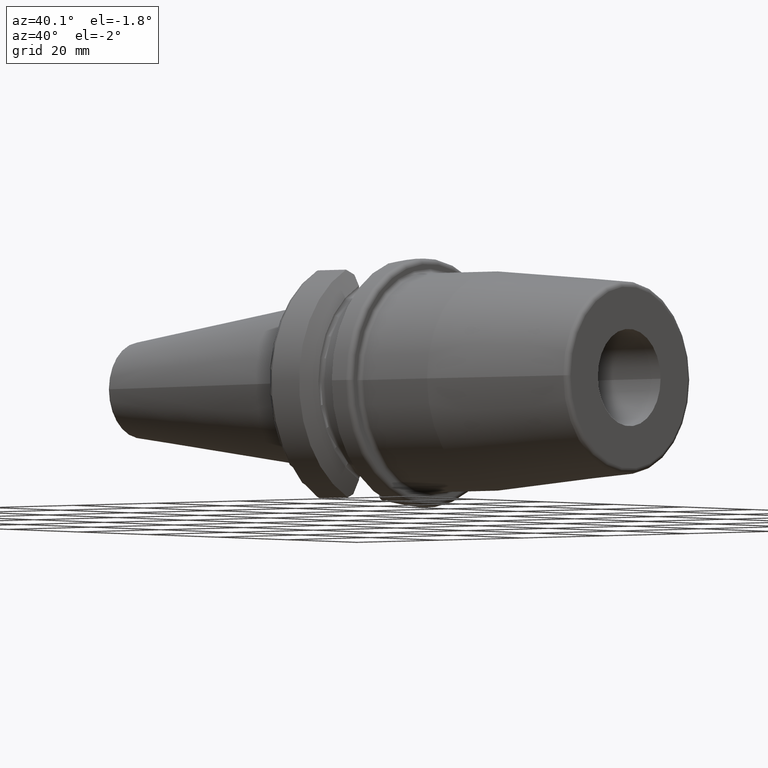
[diagram: clean part render]
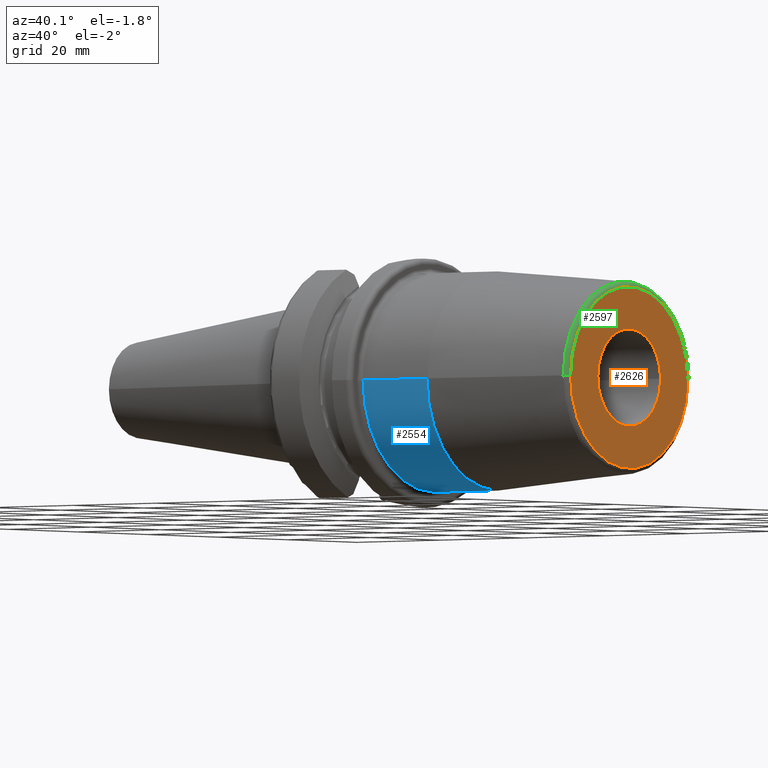
[diagram: same view with three faces highlighted in distinct colors, each labeled with its STEP entity id]
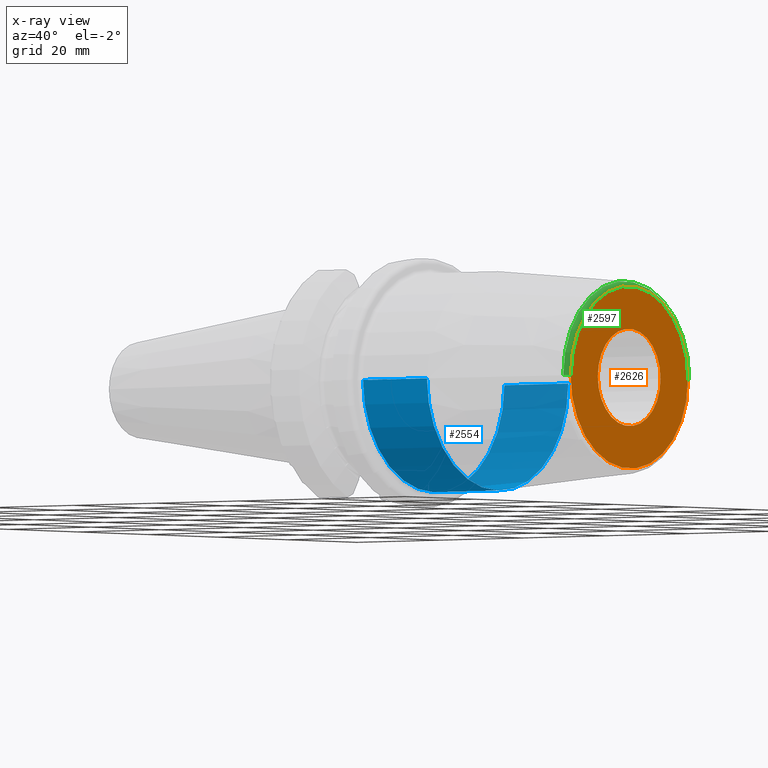
[diagram: x-ray of the same camera — body ghosted, the three highlighted faces saturated]
A machine part, auxiliary view with three faces highlighted in distinct colors.
The next image is the same camera in x-ray (body ghosted, the three faces saturated) — at least one of them is partly hidden behind the body in this view.
Their STEP definitions:

[orange] entity #2626 — the highlighted planar face has unit normal (1, 0, 0).
#898=CARTESIAN_POINT('',(7.E1,0.E0,0.E0));
#899=DIRECTION('',(-1.E0,0.E0,0.E0));
#900=DIRECTION('',(0.E0,-1.E0,0.E0));
#901=AXIS2_PLACEMENT_3D('',#898,#899,#900);
#903=CARTESIAN_POINT('',(7.E1,0.E0,0.E0));
#904=DIRECTION('',(-1.E0,0.E0,0.E0));
#905=DIRECTION('',(0.E0,1.E0,0.E0));
#906=AXIS2_PLACEMENT_3D('',#903,#904,#905);
#908=CARTESIAN_POINT('',(7.E1,0.E0,0.E0));
#909=DIRECTION('',(-1.E0,0.E0,0.E0));
#910=DIRECTION('',(0.E0,1.E0,0.E0));
#911=AXIS2_PLACEMENT_3D('',#908,#909,#910);
#913=CARTESIAN_POINT('',(7.E1,0.E0,0.E0));
#914=DIRECTION('',(-1.E0,0.E0,0.E0));
#915=DIRECTION('',(0.E0,-1.E0,0.E0));
#916=AXIS2_PLACEMENT_3D('',#913,#914,#915);
#1379=CARTESIAN_POINT('',(7.E1,-9.E0,0.E0));
#1380=CARTESIAN_POINT('',(7.E1,9.E0,0.E0));
#1381=VERTEX_POINT('',#1379);
#1382=VERTEX_POINT('',#1380);
#1399=CARTESIAN_POINT('',(7.E1,1.682560950834E1,0.E0));
#1400=CARTESIAN_POINT('',(7.E1,-1.682560950834E1,0.E0));
#1401=VERTEX_POINT('',#1399);
#1402=VERTEX_POINT('',#1400);
#2611=CARTESIAN_POINT('',(7.E1,0.E0,0.E0));
#2612=DIRECTION('',(1.E0,0.E0,0.E0));
#2613=DIRECTION('',(0.E0,-1.E0,0.E0));
#2614=AXIS2_PLACEMENT_3D('',#2611,#2612,#2613);
#2615=PLANE('',#2614);
#2616=ORIENTED_EDGE('',*,*,#2605,.T.);
#2617=ORIENTED_EDGE('',*,*,#2591,.T.);
#2618=EDGE_LOOP('',(#2616,#2617));
#2619=FACE_OUTER_BOUND('',#2618,.F.);
#2621=ORIENTED_EDGE('',*,*,#2620,.F.);
#2623=ORIENTED_EDGE('',*,*,#2622,.F.);
#2624=EDGE_LOOP('',(#2621,#2623));
#2625=FACE_BOUND('',#2624,.F.);
#2626=ADVANCED_FACE('',(#2619,#2625),#2615,.T.);
#902=CIRCLE('',#901,9.E0);
#907=CIRCLE('',#906,9.E0);
#912=CIRCLE('',#911,1.682560950834E1);
#917=CIRCLE('',#916,1.682560950834E1);
#2591=EDGE_CURVE('',#1402,#1401,#917,.T.);
#2605=EDGE_CURVE('',#1401,#1402,#912,.T.);
#2620=EDGE_CURVE('',#1381,#1382,#902,.T.);
#2622=EDGE_CURVE('',#1382,#1381,#907,.T.);

[blue] entity #2554 — the highlighted cylindrical surface (partial cylindrical patch) has radius 20.25 mm, axis along (1, 0, 0).
#852=CARTESIAN_POINT('',(2.28E1,0.E0,0.E0));
#853=DIRECTION('',(1.E0,0.E0,0.E0));
#854=DIRECTION('',(0.E0,-1.E0,0.E0));
#855=AXIS2_PLACEMENT_3D('',#852,#853,#854);
#857=DIRECTION('',(-1.E0,0.E0,-7.995869286563E-14));
#858=VECTOR('',#857,1.543448815956E1);
#859=CARTESIAN_POINT('',(3.823448815956E1,-2.025E1,0.E0));
#860=LINE('',#859,#858);
#861=CARTESIAN_POINT('',(3.823448815956E1,0.E0,0.E0));
#862=DIRECTION('',(-1.E0,0.E0,0.E0));
#863=DIRECTION('',(0.E0,1.E0,0.E0));
#864=AXIS2_PLACEMENT_3D('',#861,#862,#863);
#866=DIRECTION('',(-1.E0,0.E0,7.991852454675E-14));
#867=VECTOR('',#866,1.543448815956E1);
#868=CARTESIAN_POINT('',(3.823448815956E1,2.025E1,0.E0));
#869=LINE('',#868,#867);
#1383=CARTESIAN_POINT('',(3.823448815956E1,2.025E1,0.E0));
#1384=CARTESIAN_POINT('',(3.823448815956E1,-2.025E1,0.E0));
#1385=VERTEX_POINT('',#1383);
#1386=VERTEX_POINT('',#1384);
#1391=CARTESIAN_POINT('',(2.28E1,-2.025E1,0.E0));
#1392=CARTESIAN_POINT('',(2.28E1,2.025E1,0.E0));
#1393=VERTEX_POINT('',#1391);
#1394=VERTEX_POINT('',#1392);
#2542=CARTESIAN_POINT('',(1.96E1,0.E0,0.E0));
#2543=DIRECTION('',(1.E0,0.E0,0.E0));
#2544=DIRECTION('',(0.E0,-1.E0,0.E0));
#2545=AXIS2_PLACEMENT_3D('',#2542,#2543,#2544);
#2546=CYLINDRICAL_SURFACE('',#2545,2.025E1);
#2547=ORIENTED_EDGE('',*,*,#2507,.F.);
#2548=ORIENTED_EDGE('',*,*,#2537,.F.);
#2550=ORIENTED_EDGE('',*,*,#2549,.F.);
#2551=ORIENTED_EDGE('',*,*,#2533,.T.);
#2552=EDGE_LOOP('',(#2547,#2548,#2550,#2551));
#2553=FACE_OUTER_BOUND('',#2552,.F.);
#2554=ADVANCED_FACE('',(#2553),#2546,.T.);
#856=CIRCLE('',#855,2.025E1);
#865=CIRCLE('',#864,2.025E1);
#2507=EDGE_CURVE('',#1393,#1394,#856,.T.);
#2533=EDGE_CURVE('',#1385,#1394,#869,.T.);
#2537=EDGE_CURVE('',#1386,#1393,#860,.T.);
#2549=EDGE_CURVE('',#1385,#1386,#865,.T.);

[green] entity #2597 — the highlighted toroidal blend (fillet) surface has major radius 16.8256 mm and minor (blend) radius 1 mm.
#883=CARTESIAN_POINT('',(6.907845909573E1,0.E0,0.E0));
#884=DIRECTION('',(-1.E0,0.E0,0.E0));
#885=DIRECTION('',(0.E0,-1.E0,0.E0));
#886=AXIS2_PLACEMENT_3D('',#883,#884,#885);
#888=CARTESIAN_POINT('',(6.9E1,-1.682560950834E1,-9.688222446513E-12));
#889=DIRECTION('',(0.E0,-5.758015592106E-13,1.E0));
#890=DIRECTION('',(7.845909572792E-2,-9.969173337331E-1,-5.740265551676E-13));
#891=AXIS2_PLACEMENT_3D('',#888,#889,#890);
#893=CARTESIAN_POINT('',(6.9E1,1.682560950834E1,9.678396972745E-12));
#894=DIRECTION('',(0.E0,5.752169573991E-13,-1.E0));
#895=DIRECTION('',(7.845909572792E-2,9.969173337331E-1,5.734437554884E-13));
#896=AXIS2_PLACEMENT_3D('',#893,#894,#895);
#913=CARTESIAN_POINT('',(7.E1,0.E0,0.E0));
#914=DIRECTION('',(-1.E0,0.E0,0.E0));
#915=DIRECTION('',(0.E0,-1.E0,0.E0));
#916=AXIS2_PLACEMENT_3D('',#913,#914,#915);
#1395=CARTESIAN_POINT('',(6.907845909573E1,1.782252684207E1,
-3.231354415315E-13));
#1396=VERTEX_POINT('',#1395);
#1397=CARTESIAN_POINT('',(6.907845909573E1,-1.782252684207E1,
3.186276756011E-13));
#1398=VERTEX_POINT('',#1397);
#1399=CARTESIAN_POINT('',(7.E1,1.682560950834E1,0.E0));
#1400=CARTESIAN_POINT('',(7.E1,-1.682560950834E1,0.E0));
#1401=VERTEX_POINT('',#1399);
#1402=VERTEX_POINT('',#1400);
#2583=CARTESIAN_POINT('',(6.9E1,0.E0,0.E0));
#2584=DIRECTION('',(1.E0,0.E0,0.E0));
#2585=DIRECTION('',(0.E0,-9.999697228482E-1,-7.781605674623E-3));
#2586=AXIS2_PLACEMENT_3D('',#2583,#2584,#2585);
#2587=TOROIDAL_SURFACE('',#2586,1.682560950834E1,1.E0);
#2588=ORIENTED_EDGE('',*,*,#2576,.T.);
#2590=ORIENTED_EDGE('',*,*,#2589,.T.);
#2592=ORIENTED_EDGE('',*,*,#2591,.F.);
#2594=ORIENTED_EDGE('',*,*,#2593,.F.);
#2595=EDGE_LOOP('',(#2588,#2590,#2592,#2594));
#2596=FACE_OUTER_BOUND('',#2595,.F.);
#2597=ADVANCED_FACE('',(#2596),#2587,.T.);
#887=CIRCLE('',#886,1.782252684207E1);
#892=CIRCLE('',#891,1.E0);
#897=CIRCLE('',#896,1.E0);
#917=CIRCLE('',#916,1.682560950834E1);
#2576=EDGE_CURVE('',#1398,#1396,#887,.T.);
#2589=EDGE_CURVE('',#1396,#1401,#897,.T.);
#2591=EDGE_CURVE('',#1402,#1401,#917,.T.);
#2593=EDGE_CURVE('',#1398,#1402,#892,.T.);